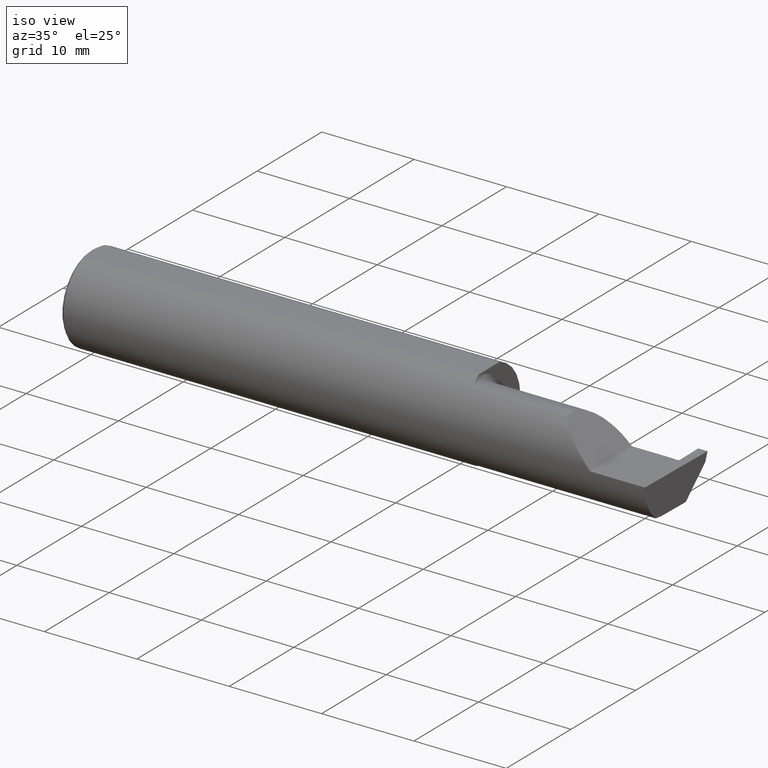
[diagram: clean part render]
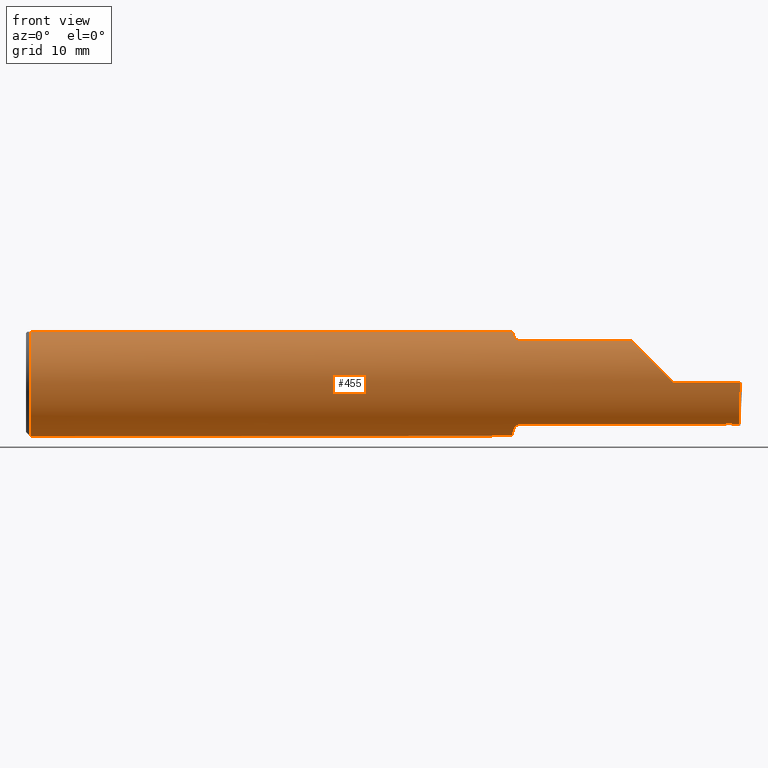
[diagram: tour spotlight — one face highlighted and labeled with its STEP entity id]
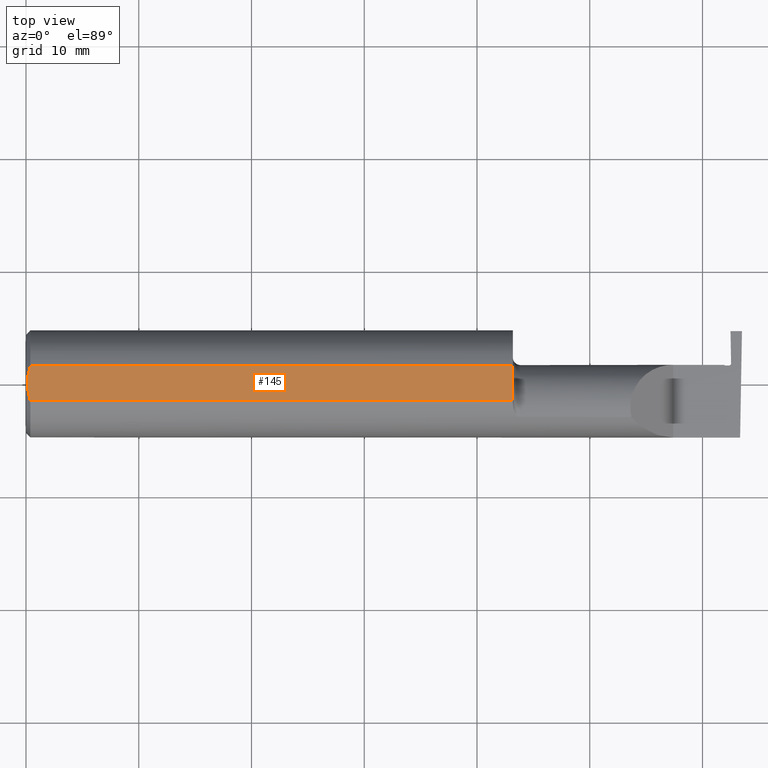
[diagram: tour spotlight — one face highlighted and labeled with its STEP entity id]
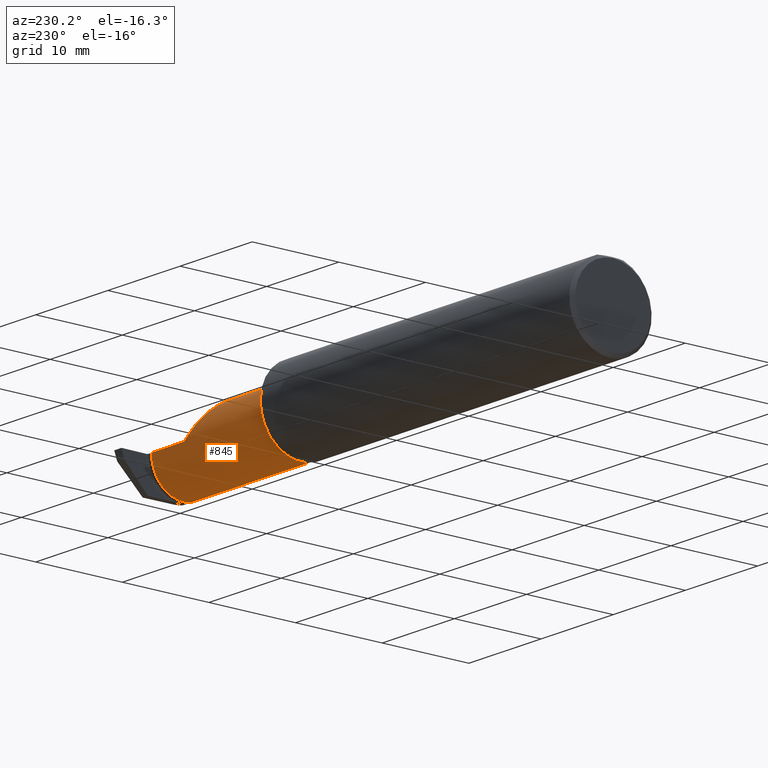
[diagram: tour spotlight — one face highlighted and labeled with its STEP entity id]
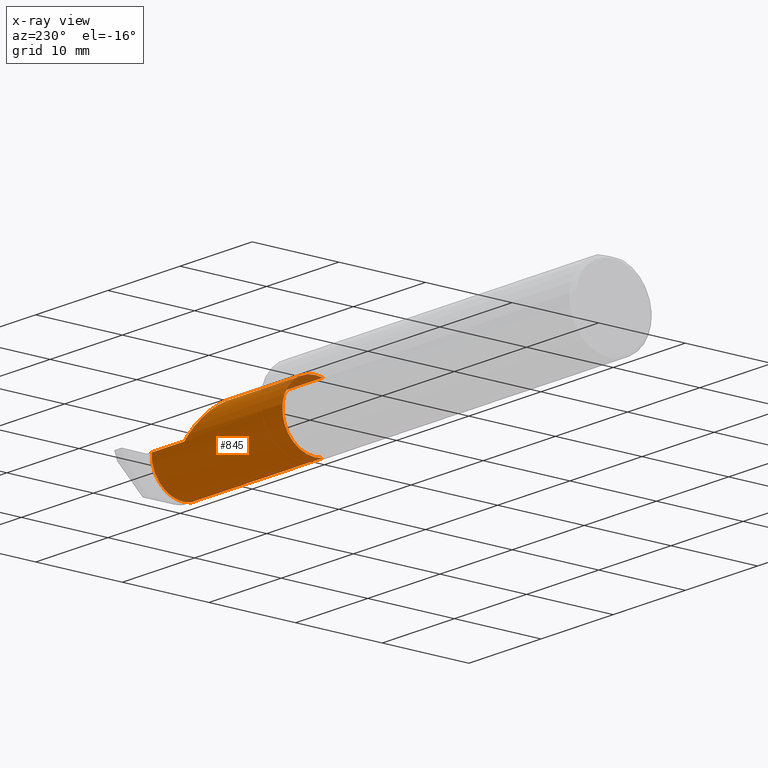
[diagram: x-ray of the same camera — body ghosted, this tour face saturated]
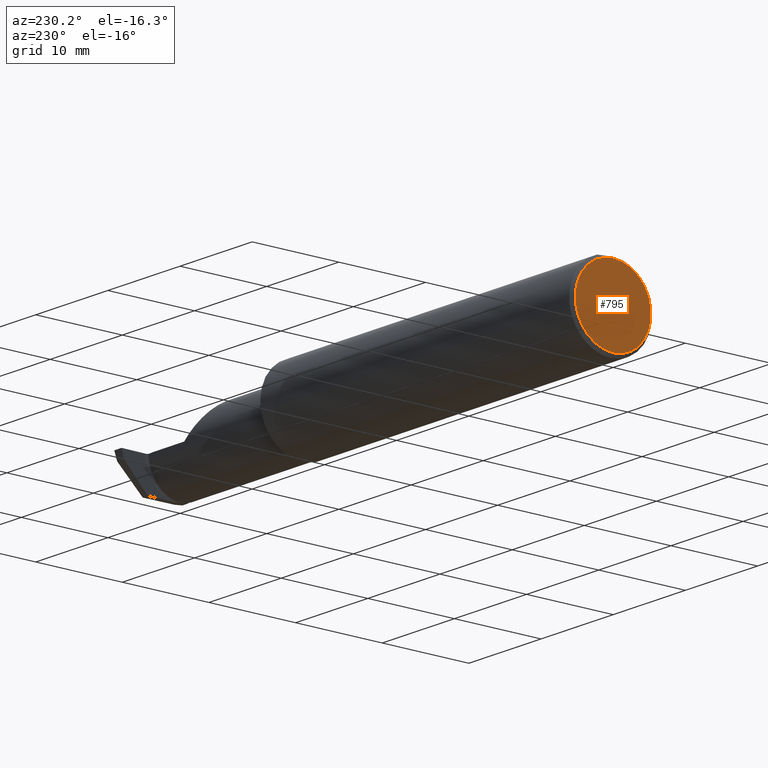
[diagram: tour spotlight — one face highlighted and labeled with its STEP entity id]
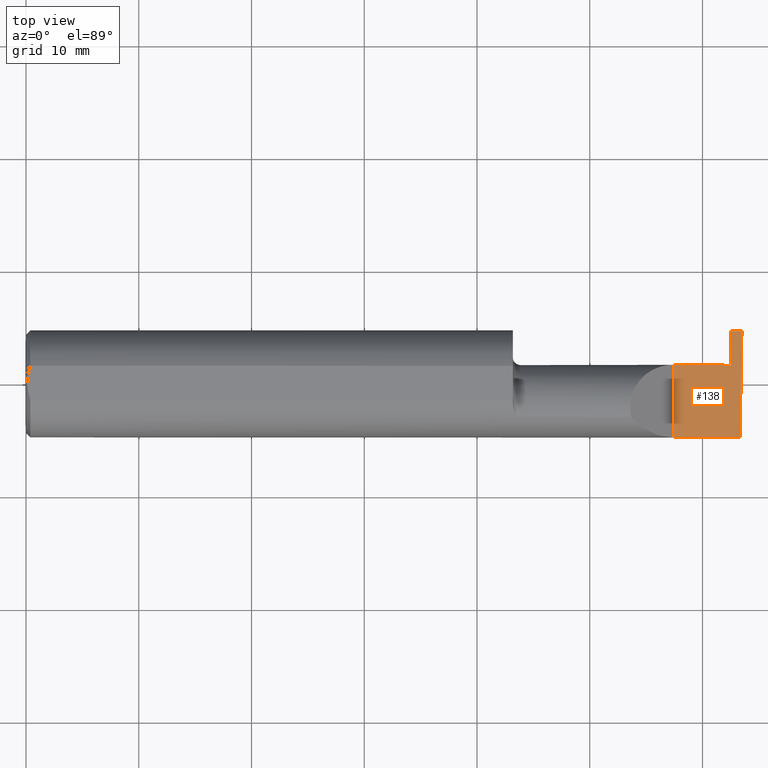
[diagram: tour spotlight — one face highlighted and labeled with its STEP entity id]
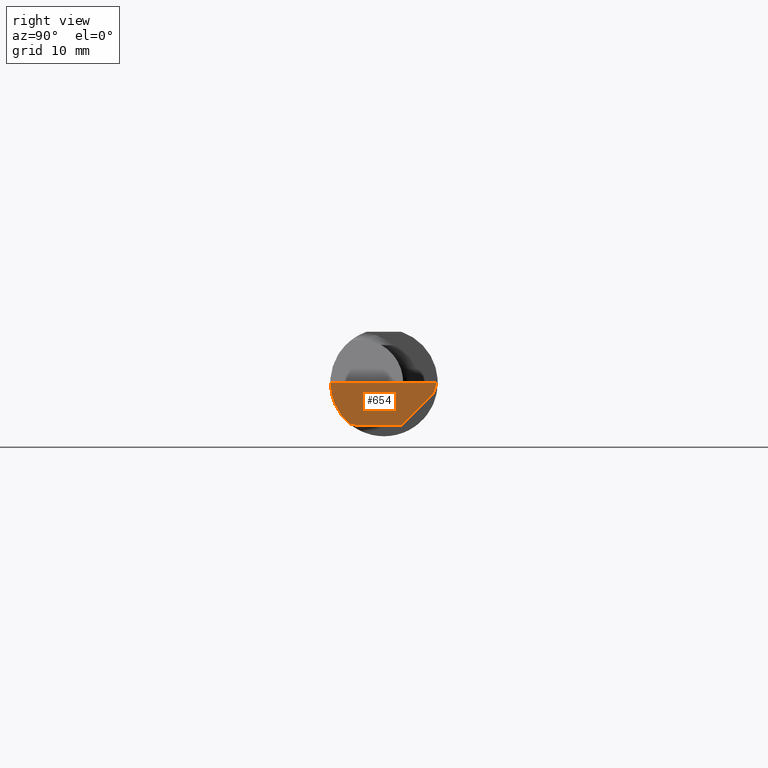
[diagram: tour spotlight — one face highlighted and labeled with its STEP entity id]
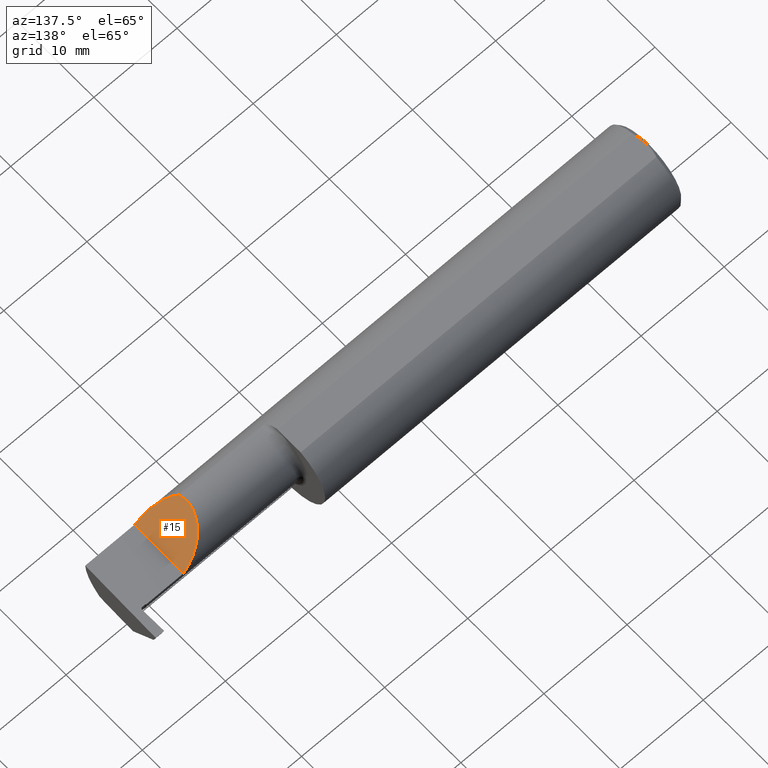
[diagram: tour spotlight — one face highlighted and labeled with its STEP entity id]
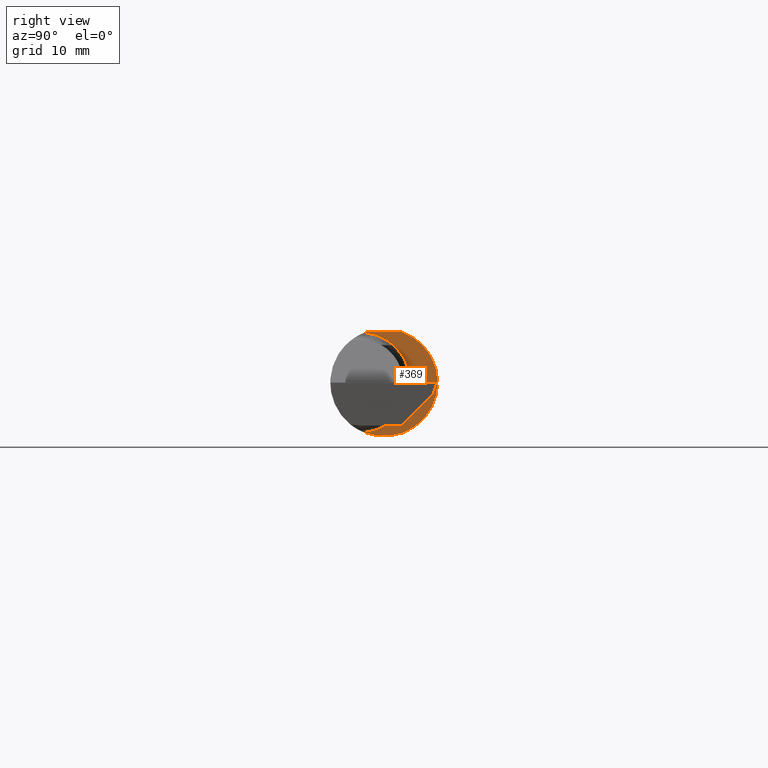
[diagram: tour spotlight — one face highlighted and labeled with its STEP entity id]
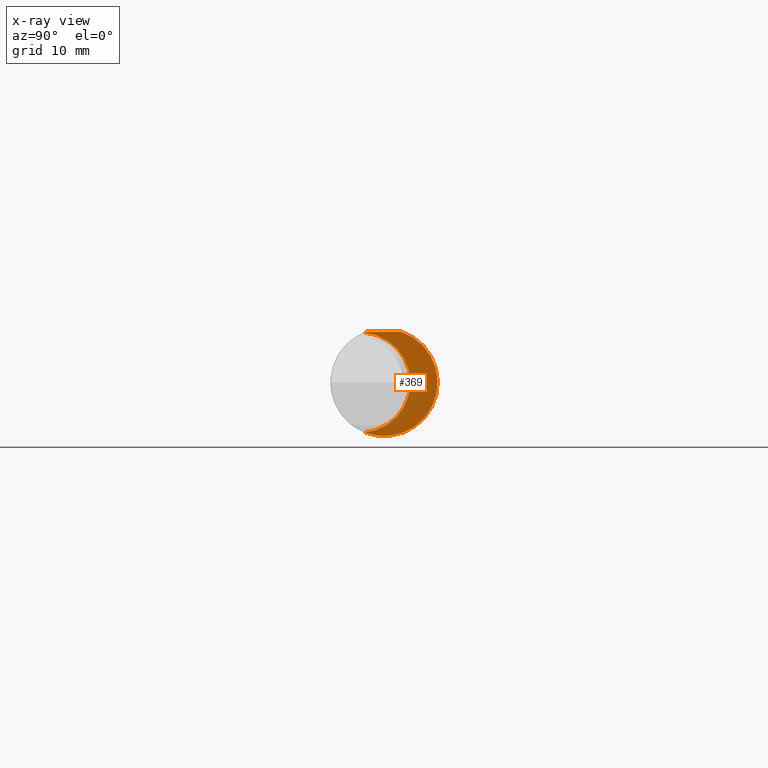
[diagram: x-ray of the same camera — body ghosted, this tour face saturated]
A machine part: a face-by-face anatomy tour. The part has 19 B-rep faces; the first image is the clean iso view, then the 8 largest visible faces are spotlighted one at a time (largest first), each with its STEP entity span.

Face 1 — front view, entity #455. In plain terms, the highlighted cylindrical surface (partial cylindrical patch) has radius 4.7587 mm, axis along (-1, -0, -0).
Definition (entity closure, byte-faithful):
#5 = AXIS2_PLACEMENT_3D ( 'NONE', #96, #538, #38 ) ;
#10 = CARTESIAN_POINT ( 'NONE',  ( 2.465157082534960686, -0.1172600179964006645, -0.1461167706989303094 ) ) ;
#13 = CARTESIAN_POINT ( 'NONE',  ( 0.01499999999999999944, -0.06039039658753697637, 0.1773499999999999799 ) ) ;
#17 = CARTESIAN_POINT ( 'NONE',  ( 2.464039528730166850, -0.1189754524817109305, -0.1447262341929199392 ) ) ;
#20 = CARTESIAN_POINT ( 'NONE',  ( 1.699999999999999956, -0.06039039658753699025, 0.1773499999999999799 ) ) ;
#21 = CARTESIAN_POINT ( 'NONE',  ( 1.699999999999999067, -0.07368234487347193051, -0.1723418180300747837 ) ) ;
#22 = CARTESIAN_POINT ( 'NONE',  ( 0.000000000000000000, 0.06039039658753697637, 0.1773499999999999799 ) ) ;
#23 = EDGE_LOOP ( 'NONE', ( #422, #909, #162, #316, #43, #472, #619, #760, #890, #862, #487, #892, #752, #320, #853, #270, #524 ) ) ;
#25 = CARTESIAN_POINT ( 'NONE',  ( 1.719481469043491417, -0.1163560528186165649, 0.1468472430636323101 ) ) ;
#30 = EDGE_CURVE ( 'NONE', #843, #35, #285, .T. ) ;
#33 = CARTESIAN_POINT ( 'NONE',  ( 1.699999999999999956, -0.06851976604679065053, -0.1743704796142198643 ) ) ;
#35 = VERTEX_POINT ( 'NONE', #742 ) ;
#36 = LINE ( 'NONE', #314, #644 ) ;
#37 = VECTOR ( 'NONE', #421, 39.37007874015748143 ) ;
#38 = DIRECTION ( 'NONE',  ( 0.000000000000000000, 0.000000000000000000, 1.000000000000000000 ) ) ;
#39 = CARTESIAN_POINT ( 'NONE',  ( 2.444567321465558329, -0.1190612593470909836, -0.1446574717509186980 ) ) ;
#43 = ORIENTED_EDGE ( 'NONE', *, *, #924, .F. ) ;
#44 = CARTESIAN_POINT ( 'NONE',  ( 2.493506715846705468, -0.1873499999999999888, 0.000000000000000000 ) ) ;
#51 = EDGE_CURVE ( 'NONE', #748, #825, #800, .T. ) ;
#66 = EDGE_CURVE ( 'NONE', #624, #684, #225, .T. ) ;
#75 = EDGE_CURVE ( 'NONE', #456, #185, #332, .T. ) ;
#85 = EDGE_CURVE ( 'NONE', #593, #456, #471, .T. ) ;
#90 = LINE ( 'NONE', #568, #785 ) ;
#91 = CARTESIAN_POINT ( 'NONE',  ( 2.444107737563633531, -0.1181638109592472036, -0.1453914687463793431 ) ) ;
#94 = CYLINDRICAL_SURFACE ( 'NONE', #116, 0.1873499999999999888 ) ;
#96 = CARTESIAN_POINT ( 'NONE',  ( 0.01499999999999999944, 0.000000000000000000, 0.000000000000000000 ) ) ;
#97 = CARTESIAN_POINT ( 'NONE',  ( 1.700353553376444893, -0.07868116735658678418, 0.1701139256562800572 ) ) ;
#100 = CARTESIAN_POINT ( 'NONE',  ( 1.699999999999999956, -0.06851976604679065053, 0.1743704796142198643 ) ) ;
#101 =( BOUNDED_CURVE ( )  B_SPLINE_CURVE ( 3, ( #866, #284, #780, #205 ),
 .UNSPECIFIED., .F., .F. ) 
 B_SPLINE_CURVE_WITH_KNOTS ( ( 4, 4 ),
 ( 4.712388980384688786, 5.606916381293135743 ),
 .UNSPECIFIED. ) 
 CURVE ( )  GEOMETRIC_REPRESENTATION_ITEM ( )  RATIONAL_B_SPLINE_CURVE ( ( 1.000000000000000000, 0.9344226172588803170, 0.9344226172588803170, 1.000000000000000000 ) ) 
 REPRESENTATION_ITEM ( '' )  );
#106 = CARTESIAN_POINT ( 'NONE',  ( 2.260000000000000231, -0.1873499999999999888, 2.939152317953647352E-17 ) ) ;
#108 = DIRECTION ( 'NONE',  ( 0.000000000000000000, 1.000000000000000000, 0.000000000000000000 ) ) ;
#113 = VERTEX_POINT ( 'NONE', #302 ) ;
#116 = AXIS2_PLACEMENT_3D ( 'NONE', #879, #375, #585 ) ;
#129 = AXIS2_PLACEMENT_3D ( 'NONE', #187, #746, #108 ) ;
#152 = LINE ( 'NONE', #293, #312 ) ;
#155 = CARTESIAN_POINT ( 'NONE',  ( 2.465157082534960686, -0.1172600179964006645, -0.1461167706989303094 ) ) ;
#157 = CARTESIAN_POINT ( 'NONE',  ( 1.702945243422983035, -0.09312071749437424162, 0.1626553472577906279 ) ) ;
#161 = CARTESIAN_POINT ( 'NONE',  ( 2.491063981715931686, -0.1623470442677541759, -0.1099340280425337851 ) ) ;
#162 = ORIENTED_EDGE ( 'NONE', *, *, #391, .T. ) ;
#170 = CARTESIAN_POINT ( 'NONE',  ( 1.724999999999999867, -0.1172600179964007477, 0.1461167706989303094 ) ) ;
#171 = CARTESIAN_POINT ( 'NONE',  ( 0.01499999999999756042, 0.06039039658754215278, 0.1773499999999999799 ) ) ;
#176 = CARTESIAN_POINT ( 'NONE',  ( 1.699999999999999956, -0.06851976604679065053, 0.1743704796142198643 ) ) ;
#184 = DIRECTION ( 'NONE',  ( 1.000000000000000000, 2.261463570914124418E-17, 0.000000000000000000 ) ) ;
#185 = VERTEX_POINT ( 'NONE', #13 ) ;
#187 = CARTESIAN_POINT ( 'NONE',  ( 1.699999999999999956, 0.000000000000000000, 0.000000000000000000 ) ) ;
#205 = CARTESIAN_POINT ( 'NONE',  ( 2.113883229301070532, -0.1172600179964008726, 0.1461167706989301707 ) ) ;
#207 = CARTESIAN_POINT ( 'NONE',  ( 1.724999999999999867, -0.1172600179964006784, -0.1461167706989303094 ) ) ;
#212 = CARTESIAN_POINT ( 'NONE',  ( 2.113883229301070532, -0.1172600179964008726, 0.1461167706989301707 ) ) ;
#225 =( BOUNDED_CURVE ( )  B_SPLINE_CURVE ( 3, ( #295, #161, #315, #372 ),
 .UNSPECIFIED., .F., .F. ) 
 B_SPLINE_CURVE_WITH_KNOTS ( ( 4, 4 ),
 ( 0.08839520912052888091, 0.9829226100289757406 ),
 .UNSPECIFIED. ) 
 CURVE ( )  GEOMETRIC_REPRESENTATION_ITEM ( )  RATIONAL_B_SPLINE_CURVE ( ( 1.000000000000000000, 0.9344226172588803170, 0.9344226172588803170, 1.000000000000000000 ) ) 
 REPRESENTATION_ITEM ( '' )  );
#227 = DIRECTION ( 'NONE',  ( 0.000000000000000000, 1.000000000000000000, 0.000000000000000000 ) ) ;
#232 = CARTESIAN_POINT ( 'NONE',  ( 1.713203859946834218, -0.1120371980050638844, -0.1501764597936558754 ) ) ;
#233 = CARTESIAN_POINT ( 'NONE',  ( 0.01499999999999999944, 0.000000000000000000, -0.1873499999999999888 ) ) ;
#244 = CARTESIAN_POINT ( 'NONE',  ( 1.700358271039144276, -0.07873626113568084339, -0.1700887912276896619 ) ) ;
#248 = DIRECTION ( 'NONE',  ( -1.000000000000000000, -0.000000000000000000, -0.000000000000000000 ) ) ;
#257 = VERTEX_POINT ( 'NONE', #10 ) ;
#263 = EDGE_CURVE ( 'NONE', #825, #313, #90, .T. ) ;
#270 = ORIENTED_EDGE ( 'NONE', *, *, #711, .F. ) ;
#271 = LINE ( 'NONE', #565, #37 ) ;
#283 = CARTESIAN_POINT ( 'NONE',  ( 2.457479760627288456, -0.1207023328152007774, -0.1432863527968775419 ) ) ;
#284 = CARTESIAN_POINT ( 'NONE',  ( 2.202189699843949189, -0.1873500000000000443, 0.05781030015605096578 ) ) ;
#285 = B_SPLINE_CURVE_WITH_KNOTS ( 'NONE', 3,
 ( #176, #459, #97, #804, #157, #373, #815, #439, #666, #25, #598, #170 ),
 .UNSPECIFIED., .F., .F.,
 ( 4, 2, 2, 2, 2, 4 ),
 ( 4.423516731080786679E-05, 0.0004615475116586701624, 0.0008788598560065325393, 0.001296172200354394916, 0.001504828372528326050, 0.001713484544702257185 ),
 .UNSPECIFIED. ) ;
#293 = CARTESIAN_POINT ( 'NONE',  ( 0.000000000000000000, -0.06039039658753697637, 0.1773499999999999799 ) ) ;
#295 = CARTESIAN_POINT ( 'NONE',  ( 2.490903355898019367, -0.1172600179964007477, -0.1461167706989302817 ) ) ;
#302 = CARTESIAN_POINT ( 'NONE',  ( 1.699999999999999956, 0.06039039658754216666, 0.1773499999999999799 ) ) ;
#312 = VECTOR ( 'NONE', #794, 39.37007874015748143 ) ;
#313 = VERTEX_POINT ( 'NONE', #207 ) ;
#314 = CARTESIAN_POINT ( 'NONE',  ( 2.089999999999999858, -0.1172600179964007477, -0.1461167706989302817 ) ) ;
#315 = CARTESIAN_POINT ( 'NONE',  ( 2.491992669264299742, -0.1873499999999999888, -0.05781030015605114619 ) ) ;
#316 = ORIENTED_EDGE ( 'NONE', *, *, #317, .T. ) ;
#317 = EDGE_CURVE ( 'NONE', #839, #357, #101, .T. ) ;
#320 = ORIENTED_EDGE ( 'NONE', *, *, #263, .F. ) ;
#332 = CIRCLE ( 'NONE', #429, 0.1873499999999999888 ) ;
#343 = CIRCLE ( 'NONE', #699, 0.1873499999999999888 ) ;
#357 = VERTEX_POINT ( 'NONE', #212 ) ;
#363 = CARTESIAN_POINT ( 'NONE',  ( 2.454366191791717444, -0.1205154511843879034, -0.1434436126210121010 ) ) ;
#367 = CARTESIAN_POINT ( 'NONE',  ( 2.443647039190226078, -0.1172600179964006784, -0.1461167706989302817 ) ) ;
#372 = CARTESIAN_POINT ( 'NONE',  ( 2.493506715846705468, -0.1873499999999999888, 0.000000000000000000 ) ) ;
#373 = CARTESIAN_POINT ( 'NONE',  ( 1.706287624083520305, -0.1021858045380145269, 0.1571187174372875861 ) ) ;
#374 = CARTESIAN_POINT ( 'NONE',  ( 1.708439486659307338, -0.1064616213911158960, -0.1542305641651499637 ) ) ;
#375 = DIRECTION ( 'NONE',  ( -1.000000000000000000, -0.000000000000000000, -0.000000000000000000 ) ) ;
#391 = EDGE_CURVE ( 'NONE', #684, #839, #271, .T. ) ;
#412 = EDGE_CURVE ( 'NONE', #257, #561, #482, .T. ) ;
#420 = EDGE_CURVE ( 'NONE', #185, #734, #152, .T. ) ;
#421 = DIRECTION ( 'NONE',  ( -1.000000000000000000, -0.000000000000000000, -0.000000000000000000 ) ) ;
#422 = ORIENTED_EDGE ( 'NONE', *, *, #703, .F. ) ;
#424 = CARTESIAN_POINT ( 'NONE',  ( 2.446893715973942118, -0.1200651732626718121, -0.1438207158681458764 ) ) ;
#429 = AXIS2_PLACEMENT_3D ( 'NONE', #754, #248, #733 ) ;
#431 = CARTESIAN_POINT ( 'NONE',  ( 2.450629942783401294, -0.1202905323672299881, -0.1436322050335801792 ) ) ;
#432 = DIRECTION ( 'NONE',  ( -1.000000000000000000, -0.000000000000000000, -0.000000000000000000 ) ) ;
#434 = CARTESIAN_POINT ( 'NONE',  ( 2.445025619349276536, -0.1199521637386445905, -0.1439149085898239755 ) ) ;
#439 = CARTESIAN_POINT ( 'NONE',  ( 1.713163223656403167, -0.1119926267047277740, 0.1502091925606063305 ) ) ;
#441 = CARTESIAN_POINT ( 'NONE',  ( 1.722174967710399462, -0.1172600179964006922, -0.1461167706989303650 ) ) ;
#442 = FACE_OUTER_BOUND ( 'NONE', #23, .T. ) ;
#452 = B_SPLINE_CURVE_WITH_KNOTS ( 'NONE', 3,
 ( #682, #441, #737, #888, #232, #374, #903, #883, #810, #244, #21, #33 ),
 .UNSPECIFIED., .F., .F.,
 ( 4, 2, 2, 2, 2, 4 ),
 ( 1.967976973658592312E-07, 0.0002120314145722276790, 0.0004238660314470894634, 0.0008475352651968016482, 0.001271204498946513833, 0.001694873732696225693 ),
 .UNSPECIFIED. ) ;
#455 = ADVANCED_FACE ( 'NONE', ( #442 ), #94, .T. ) ;
#456 = VERTEX_POINT ( 'NONE', #233 ) ;
#459 = CARTESIAN_POINT ( 'NONE',  ( 1.699999999999999067, -0.07367581953296699349, 0.1723443821957854893 ) ) ;
#471 = CIRCLE ( 'NONE', #5, 0.1873499999999999888 ) ;
#472 = ORIENTED_EDGE ( 'NONE', *, *, #30, .F. ) ;
#482 = B_SPLINE_CURVE_WITH_KNOTS ( 'NONE', 3,
 ( #155, #512, #17, #807, #884, #595 ),
 .UNSPECIFIED., .F., .F.,
 ( 4, 2, 4 ),
 ( 0.0002880341540418109372, 0.0003798726319032785749, 0.0004717111097647461583 ),
 .UNSPECIFIED. ) ;
#487 = ORIENTED_EDGE ( 'NONE', *, *, #493, .F. ) ;
#493 = EDGE_CURVE ( 'NONE', #113, #593, #517, .T. ) ;
#512 = CARTESIAN_POINT ( 'NONE',  ( 2.464654264849292620, -0.1181371930991330227, -0.1454128298176722844 ) ) ;
#515 = DIRECTION ( 'NONE',  ( 1.000000000000000000, 2.261463570914124418E-17, 0.000000000000000000 ) ) ;
#517 = LINE ( 'NONE', #22, #735 ) ;
#524 = ORIENTED_EDGE ( 'NONE', *, *, #412, .F. ) ;
#529 = VECTOR ( 'NONE', #184, 39.37007874015748143 ) ;
#538 = DIRECTION ( 'NONE',  ( -1.000000000000000000, -0.000000000000000000, -0.000000000000000000 ) ) ;
#540 = CARTESIAN_POINT ( 'NONE',  ( 2.490903355898019367, -0.1172600179964007477, -0.1461167706989302817 ) ) ;
#541 = CARTESIAN_POINT ( 'NONE',  ( 2.089999999999999858, -0.1172600179964007477, 0.1461167706989302817 ) ) ;
#561 = VERTEX_POINT ( 'NONE', #627 ) ;
#565 = CARTESIAN_POINT ( 'NONE',  ( 3.749399456654646757E-32, -0.1873499999999999888, 3.061616997868384127E-16 ) ) ;
#568 = CARTESIAN_POINT ( 'NONE',  ( 2.089999999999999858, -0.1172600179964007477, -0.1461167706989302817 ) ) ;
#574 = CARTESIAN_POINT ( 'NONE',  ( 1.699999999999999956, 0.000000000000000000, 0.000000000000000000 ) ) ;
#577 = VERTEX_POINT ( 'NONE', #622 ) ;
#579 = CARTESIAN_POINT ( 'NONE',  ( 2.445025619349276536, -0.1199521637386445905, -0.1439149085898239755 ) ) ;
#585 = DIRECTION ( 'NONE',  ( 0.000000000000000000, 0.000000000000000000, 1.000000000000000000 ) ) ;
#593 = VERTEX_POINT ( 'NONE', #171 ) ;
#594 = CARTESIAN_POINT ( 'NONE',  ( 2.448761823782178215, -0.1201779628839894365, -0.1437264808477274891 ) ) ;
#595 = CARTESIAN_POINT ( 'NONE',  ( 2.459970630616837628, -0.1208515442419402647, -0.1431604929941859006 ) ) ;
#598 = CARTESIAN_POINT ( 'NONE',  ( 1.722161949849308149, -0.1172600179964061462, 0.1461167706989260351 ) ) ;
#603 = EDGE_CURVE ( 'NONE', #313, #577, #452, .T. ) ;
#610 = DIRECTION ( 'NONE',  ( -1.000000000000000000, -2.261463570914124418E-17, -0.000000000000000000 ) ) ;
#614 = LINE ( 'NONE', #541, #529 ) ;
#619 = ORIENTED_EDGE ( 'NONE', *, *, #773, .F. ) ;
#622 = CARTESIAN_POINT ( 'NONE',  ( 1.699999999999999956, -0.06851976604679065053, -0.1743704796142198643 ) ) ;
#624 = VERTEX_POINT ( 'NONE', #540 ) ;
#627 = CARTESIAN_POINT ( 'NONE',  ( 2.459970630616837628, -0.1208515442419402647, -0.1431604929941859006 ) ) ;
#642 = DIRECTION ( 'NONE',  ( -1.000000000000000000, -2.261463570914124418E-17, -0.000000000000000000 ) ) ;
#644 = VECTOR ( 'NONE', #610, 39.37007874015748143 ) ;
#661 = CARTESIAN_POINT ( 'NONE',  ( 2.456234333134034831, -0.1206275801653350077, -0.1433492567244618321 ) ) ;
#666 = CARTESIAN_POINT ( 'NONE',  ( 1.715004157323697154, -0.1137044537483316159, 0.1489098419202428691 ) ) ;
#669 = CARTESIAN_POINT ( 'NONE',  ( 2.443647039190226078, -0.1172600179964006784, -0.1461167706989302817 ) ) ;
#670 = EDGE_CURVE ( 'NONE', #577, #113, #757, .T. ) ;
#681 = CARTESIAN_POINT ( 'NONE',  ( 2.445025619349276536, -0.1199521637386445905, -0.1439149085898239755 ) ) ;
#682 = CARTESIAN_POINT ( 'NONE',  ( 1.724999999999999867, -0.1172600179964006784, -0.1461167706989303094 ) ) ;
#684 = VERTEX_POINT ( 'NONE', #44 ) ;
#699 = AXIS2_PLACEMENT_3D ( 'NONE', #574, #515, #227 ) ;
#703 = EDGE_CURVE ( 'NONE', #624, #257, #36, .T. ) ;
#711 = EDGE_CURVE ( 'NONE', #561, #748, #850, .T. ) ;
#733 = DIRECTION ( 'NONE',  ( 0.000000000000000000, 0.000000000000000000, 1.000000000000000000 ) ) ;
#734 = VERTEX_POINT ( 'NONE', #20 ) ;
#735 = VECTOR ( 'NONE', #432, 39.37007874015748143 ) ;
#737 = CARTESIAN_POINT ( 'NONE',  ( 1.719511795768554396, -0.1163687266324235497, -0.1468371510166789073 ) ) ;
#742 = CARTESIAN_POINT ( 'NONE',  ( 1.724999999999999867, -0.1172600179964007477, 0.1461167706989303094 ) ) ;
#746 = DIRECTION ( 'NONE',  ( 1.000000000000000000, 2.261463570914124418E-17, 0.000000000000000000 ) ) ;
#748 = VERTEX_POINT ( 'NONE', #434 ) ;
#752 = ORIENTED_EDGE ( 'NONE', *, *, #603, .F. ) ;
#754 = CARTESIAN_POINT ( 'NONE',  ( 0.01499999999999999944, 0.000000000000000000, 0.000000000000000000 ) ) ;
#757 = CIRCLE ( 'NONE', #129, 0.1873499999999999888 ) ;
#760 = ORIENTED_EDGE ( 'NONE', *, *, #420, .F. ) ;
#773 = EDGE_CURVE ( 'NONE', #734, #843, #343, .T. ) ;
#780 = CARTESIAN_POINT ( 'NONE',  ( 2.150065971957467070, -0.1623470442677542591, 0.1099340280425335908 ) ) ;
#785 = VECTOR ( 'NONE', #642, 39.37007874015748143 ) ;
#794 = DIRECTION ( 'NONE',  ( 1.000000000000000000, 0.000000000000000000, 0.000000000000000000 ) ) ;
#800 = B_SPLINE_CURVE_WITH_KNOTS ( 'NONE', 3,
 ( #681, #39, #91, #367 ),
 .UNSPECIFIED., .F., .F.,
 ( 4, 4 ),
 ( 0.000000000000000000, 9.502270576536308872E-05 ),
 .UNSPECIFIED. ) ;
#801 = CARTESIAN_POINT ( 'NONE',  ( 2.458725193120777419, -0.1207769875284095407, -0.1432234314053029700 ) ) ;
#804 = CARTESIAN_POINT ( 'NONE',  ( 1.701829077486399555, -0.08839624499054642148, 0.1652742498708037744 ) ) ;
#807 = CARTESIAN_POINT ( 'NONE',  ( 2.462366680899651161, -0.1203677650156720069, -0.1435703392140023904 ) ) ;
#810 = CARTESIAN_POINT ( 'NONE',  ( 1.701843912362377642, -0.08846956905169091334, -0.1652353808078972086 ) ) ;
#815 = CARTESIAN_POINT ( 'NONE',  ( 1.708475602106621194, -0.1064978748893405935, 0.1542035505680383611 ) ) ;
#825 = VERTEX_POINT ( 'NONE', #669 ) ;
#839 = VERTEX_POINT ( 'NONE', #106 ) ;
#843 = VERTEX_POINT ( 'NONE', #100 ) ;
#850 = B_SPLINE_CURVE_WITH_KNOTS ( 'NONE', 3,
 ( #898, #801, #283, #661, #363, #877, #431, #594, #424, #579 ),
 .UNSPECIFIED., .F., .F.,
 ( 4, 3, 3, 4 ),
 ( 0.000000000000000000, 9.519312269160563563E-05, 0.0002379828151262200747, 0.0003807725157339260846 ),
 .UNSPECIFIED. ) ;
#853 = ORIENTED_EDGE ( 'NONE', *, *, #51, .F. ) ;
#862 = ORIENTED_EDGE ( 'NONE', *, *, #85, .F. ) ;
#866 = CARTESIAN_POINT ( 'NONE',  ( 2.260000000000000231, -0.1873499999999999888, 2.939152317953647352E-17 ) ) ;
#877 = CARTESIAN_POINT ( 'NONE',  ( 2.452498061677699681, -0.1204031018440274575, -0.1435379292248289418 ) ) ;
#879 = CARTESIAN_POINT ( 'NONE',  ( 0.000000000000000000, 0.000000000000000000, 0.000000000000000000 ) ) ;
#883 = CARTESIAN_POINT ( 'NONE',  ( 1.702960551809340473, -0.09317341542745746774, -0.1626248379125197208 ) ) ;
#884 = CARTESIAN_POINT ( 'NONE',  ( 2.461215914213870537, -0.1209260915574627421, -0.1430975625165690490 ) ) ;
#888 = CARTESIAN_POINT ( 'NONE',  ( 1.715028532764138802, -0.1137241120808236000, -0.1488947809299403513 ) ) ;
#890 = ORIENTED_EDGE ( 'NONE', *, *, #75, .F. ) ;
#892 = ORIENTED_EDGE ( 'NONE', *, *, #670, .F. ) ;
#898 = CARTESIAN_POINT ( 'NONE',  ( 2.459970630616837628, -0.1208515442419402647, -0.1431604929941859006 ) ) ;
#903 = CARTESIAN_POINT ( 'NONE',  ( 1.706304331342287650, -0.1022198306720691202, -0.1570962426853818317 ) ) ;
#909 = ORIENTED_EDGE ( 'NONE', *, *, #66, .T. ) ;
#924 = EDGE_CURVE ( 'NONE', #35, #357, #614, .T. ) ;

Face 2 — top view, entity #145. In plain terms, the highlighted planar face has unit normal (0, -0, 1).
Definition (entity closure, byte-faithful):
#13 = CARTESIAN_POINT ( 'NONE',  ( 0.01499999999999999944, -0.06039039658753697637, 0.1773499999999999799 ) ) ;
#20 = CARTESIAN_POINT ( 'NONE',  ( 1.699999999999999956, -0.06039039658753699025, 0.1773499999999999799 ) ) ;
#22 = CARTESIAN_POINT ( 'NONE',  ( 0.000000000000000000, 0.06039039658753697637, 0.1773499999999999799 ) ) ;
#54 = CARTESIAN_POINT ( 'NONE',  ( 0.004999999999999835305, 2.941982542510190671E-17, 0.1773499999999999799 ) ) ;
#113 = VERTEX_POINT ( 'NONE', #302 ) ;
#133 = ORIENTED_EDGE ( 'NONE', *, *, #420, .T. ) ;
#136 = ORIENTED_EDGE ( 'NONE', *, *, #493, .T. ) ;
#145 = ADVANCED_FACE ( 'NONE', ( #867 ), #349, .T. ) ;
#152 = LINE ( 'NONE', #293, #312 ) ;
#168 = AXIS2_PLACEMENT_3D ( 'NONE', #290, #864, #721 ) ;
#171 = CARTESIAN_POINT ( 'NONE',  ( 0.01499999999999756042, 0.06039039658754215278, 0.1773499999999999799 ) ) ;
#172 = CARTESIAN_POINT ( 'NONE',  ( 1.699999999999999956, -0.1873500000000000443, 0.1773499999999999799 ) ) ;
#178 = CARTESIAN_POINT ( 'NONE',  ( 0.009346310357820472939, 0.04072930668827419443, 0.1773500000000000354 ) ) ;
#185 = VERTEX_POINT ( 'NONE', #13 ) ;
#241 = VECTOR ( 'NONE', #461, 39.37007874015748143 ) ;
#256 = CARTESIAN_POINT ( 'NONE',  ( 0.01499999999999756042, 0.06039039658754215278, 0.1773499999999999799 ) ) ;
#266 = B_SPLINE_CURVE_WITH_KNOTS ( 'NONE', 3,
 ( #256, #535, #178, #750, #837, #387 ),
 .UNSPECIFIED., .F., .F.,
 ( 4, 2, 4 ),
 ( 0.004207325536406422359, 0.004979129323161655095, 0.005750933109916887831 ),
 .UNSPECIFIED. ) ;
#290 = CARTESIAN_POINT ( 'NONE',  ( 2.500000000000000000, -0.1873500000000000165, 0.1773499999999999799 ) ) ;
#293 = CARTESIAN_POINT ( 'NONE',  ( 0.000000000000000000, -0.06039039658753697637, 0.1773499999999999799 ) ) ;
#302 = CARTESIAN_POINT ( 'NONE',  ( 1.699999999999999956, 0.06039039658754216666, 0.1773499999999999799 ) ) ;
#312 = VECTOR ( 'NONE', #794, 39.37007874015748143 ) ;
#349 = PLANE ( 'NONE',  #168 ) ;
#387 = CARTESIAN_POINT ( 'NONE',  ( 0.004999999999999835305, 2.941982542510190671E-17, 0.1773499999999999799 ) ) ;
#420 = EDGE_CURVE ( 'NONE', #185, #734, #152, .T. ) ;
#432 = DIRECTION ( 'NONE',  ( -1.000000000000000000, -0.000000000000000000, -0.000000000000000000 ) ) ;
#461 = DIRECTION ( 'NONE',  ( -2.261463570914124418E-17, 1.000000000000000000, 0.000000000000000000 ) ) ;
#464 = CARTESIAN_POINT ( 'NONE',  ( 0.004999999999999833571, -0.01026662907944655458, 0.1773499999999999521 ) ) ;
#473 = CARTESIAN_POINT ( 'NONE',  ( 0.009318557230853204490, -0.04061090184993776386, 0.1773499999999999799 ) ) ;
#493 = EDGE_CURVE ( 'NONE', #113, #593, #517, .T. ) ;
#499 = VERTEX_POINT ( 'NONE', #652 ) ;
#517 = LINE ( 'NONE', #22, #735 ) ;
#519 = EDGE_LOOP ( 'NONE', ( #133, #612, #136, #553, #905 ) ) ;
#535 = CARTESIAN_POINT ( 'NONE',  ( 0.01185291896084217714, 0.05062716160312498437, 0.1773499999999999521 ) ) ;
#552 = B_SPLINE_CURVE_WITH_KNOTS ( 'NONE', 3,
 ( #54, #464, #765, #473, #833, #753 ),
 .UNSPECIFIED., .F., .F.,
 ( 4, 2, 4 ),
 ( 0.005750933109916887831, 0.006521788775031543001, 0.007292644440146199038 ),
 .UNSPECIFIED. ) ;
#553 = ORIENTED_EDGE ( 'NONE', *, *, #917, .T. ) ;
#593 = VERTEX_POINT ( 'NONE', #171 ) ;
#612 = ORIENTED_EDGE ( 'NONE', *, *, #824, .T. ) ;
#649 = EDGE_CURVE ( 'NONE', #499, #185, #552, .T. ) ;
#652 = CARTESIAN_POINT ( 'NONE',  ( 0.004999999999999835305, 2.941982542510190671E-17, 0.1773499999999999799 ) ) ;
#721 = DIRECTION ( 'NONE',  ( 1.000000000000000000, 0.000000000000000000, -0.000000000000000000 ) ) ;
#734 = VERTEX_POINT ( 'NONE', #20 ) ;
#735 = VECTOR ( 'NONE', #432, 39.37007874015748143 ) ;
#750 = CARTESIAN_POINT ( 'NONE',  ( 0.005916828623699125177, 0.02060071390057613763, 0.1773499999999999799 ) ) ;
#753 = CARTESIAN_POINT ( 'NONE',  ( 0.01499999999999999944, -0.06039039658753697637, 0.1773499999999999799 ) ) ;
#765 = CARTESIAN_POINT ( 'NONE',  ( 0.005896899252109314912, -0.02043863390046160924, 0.1773500000000000354 ) ) ;
#794 = DIRECTION ( 'NONE',  ( 1.000000000000000000, 0.000000000000000000, 0.000000000000000000 ) ) ;
#818 = LINE ( 'NONE', #172, #241 ) ;
#824 = EDGE_CURVE ( 'NONE', #734, #113, #818, .T. ) ;
#833 = CARTESIAN_POINT ( 'NONE',  ( 0.01186375298701897348, -0.05066077215909271098, 0.1773499999999999799 ) ) ;
#837 = CARTESIAN_POINT ( 'NONE',  ( 0.004999999999999839642, 0.01027925662263861305, 0.1773499999999999799 ) ) ;
#864 = DIRECTION ( 'NONE',  ( 0.000000000000000000, -0.000000000000000000, 1.000000000000000000 ) ) ;
#867 = FACE_OUTER_BOUND ( 'NONE', #519, .T. ) ;
#905 = ORIENTED_EDGE ( 'NONE', *, *, #649, .T. ) ;
#917 = EDGE_CURVE ( 'NONE', #593, #499, #266, .T. ) ;

Face 3 — auxiliary view, entity #845. An x-ray twin of the same camera follows (body ghosted, this face saturated) — the face is partly hidden behind the body. In plain terms, the highlighted cylindrical surface (partial cylindrical patch) has radius 3.81 mm, axis along (-1, -0, -0).
Definition (entity closure, byte-faithful):
#35 = VERTEX_POINT ( 'NONE', #742 ) ;
#50 = DIRECTION ( 'NONE',  ( 0.000000000000000000, -1.000000000000000000, 0.000000000000000000 ) ) ;
#59 = CARTESIAN_POINT ( 'NONE',  ( 2.260000000000000231, 0.06665000000000002867, 2.939152317953647352E-17 ) ) ;
#90 = LINE ( 'NONE', #568, #785 ) ;
#112 = CARTESIAN_POINT ( 'NONE',  ( 1.724999999999999867, -0.08334999999999996578, 0.000000000000000000 ) ) ;
#121 = CARTESIAN_POINT ( 'NONE',  ( 2.443733570787250287, -0.1062136811403290720, -0.1486803469386182297 ) ) ;
#131 = CARTESIAN_POINT ( 'NONE',  ( 2.443382066057399715, -0.02860029826593078403, -0.1401013635948213376 ) ) ;
#146 = CARTESIAN_POINT ( 'NONE',  ( 2.437999999999999279, 0.06665000000000012581, 8.765184870477052559E-18 ) ) ;
#183 = CARTESIAN_POINT ( 'NONE',  ( 2.438434870138894706, 0.06665000001257273543, -0.01133157783873995315 ) ) ;
#184 = DIRECTION ( 'NONE',  ( 1.000000000000000000, 2.261463570914124418E-17, 0.000000000000000000 ) ) ;
#190 = DIRECTION ( 'NONE',  ( 1.000000000000000000, 2.261463570914124418E-17, 0.000000000000000000 ) ) ;
#193 = CARTESIAN_POINT ( 'NONE',  ( 2.443815344807843903, -0.07244319703336320193, -0.1500290047513198888 ) ) ;
#207 = CARTESIAN_POINT ( 'NONE',  ( 1.724999999999999867, -0.1172600179964006784, -0.1461167706989303094 ) ) ;
#212 = CARTESIAN_POINT ( 'NONE',  ( 2.113883229301070532, -0.1172600179964008726, 0.1461167706989301707 ) ) ;
#237 = ORIENTED_EDGE ( 'NONE', *, *, #263, .T. ) ;
#245 = CARTESIAN_POINT ( 'NONE',  ( 1.699999999999999956, -0.08334999999999996578, 0.000000000000000000 ) ) ;
#259 = CARTESIAN_POINT ( 'NONE',  ( 2.443789578363331660, -0.09504051956460037032, -0.1499699715607571149 ) ) ;
#263 = EDGE_CURVE ( 'NONE', #825, #313, #90, .T. ) ;
#264 = CARTESIAN_POINT ( 'NONE',  ( 2.441904550514381711, 0.02678675195050726418, -0.1024442611876130310 ) ) ;
#279 = AXIS2_PLACEMENT_3D ( 'NONE', #245, #608, #306 ) ;
#306 = DIRECTION ( 'NONE',  ( 0.000000000000000000, -1.000000000000000000, 0.000000000000000000 ) ) ;
#313 = VERTEX_POINT ( 'NONE', #207 ) ;
#322 = CARTESIAN_POINT ( 'NONE',  ( 2.441258951838722879, 0.04075339827323681136, -0.08498986596952491646 ) ) ;
#338 = CARTESIAN_POINT ( 'NONE',  ( 2.442238177621225415, 0.01877818259013969149, -0.1104401941422841482 ) ) ;
#357 = VERTEX_POINT ( 'NONE', #212 ) ;
#376 = FACE_OUTER_BOUND ( 'NONE', #671, .T. ) ;
#379 = VERTEX_POINT ( 'NONE', #146 ) ;
#392 = CARTESIAN_POINT ( 'NONE',  ( 2.443647039190226078, -0.1172600179964006784, -0.1461167706989302817 ) ) ;
#395 = ORIENTED_EDGE ( 'NONE', *, *, #863, .F. ) ;
#400 = ORIENTED_EDGE ( 'NONE', *, *, #533, .T. ) ;
#451 = ORIENTED_EDGE ( 'NONE', *, *, #855, .T. ) ;
#454 = CYLINDRICAL_SURFACE ( 'NONE', #279, 0.1499999999999999667 ) ;
#468 = CARTESIAN_POINT ( 'NONE',  ( 1.699999999999999956, 0.06665000000000001479, 9.797174393178832313E-17 ) ) ;
#474 = CARTESIAN_POINT ( 'NONE',  ( 2.442833554690725606, 0.001115449006605484517, -0.1244700368982947641 ) ) ;
#479 = LINE ( 'NONE', #468, #813 ) ;
#525 = EDGE_CURVE ( 'NONE', #530, #379, #479, .T. ) ;
#529 = VECTOR ( 'NONE', #184, 39.37007874015748143 ) ;
#530 = VERTEX_POINT ( 'NONE', #59 ) ;
#533 = EDGE_CURVE ( 'NONE', #379, #825, #848, .T. ) ;
#541 = CARTESIAN_POINT ( 'NONE',  ( 2.089999999999999858, -0.1172600179964007477, 0.1461167706989302817 ) ) ;
#544 = CARTESIAN_POINT ( 'NONE',  ( 2.443526505352285216, -0.03939163170913394241, -0.1438495478264734950 ) ) ;
#550 = CARTESIAN_POINT ( 'NONE',  ( 2.439687465777439890, 0.06031148358191426584, -0.04459181647100833590 ) ) ;
#568 = CARTESIAN_POINT ( 'NONE',  ( 2.089999999999999858, -0.1172600179964007477, -0.1461167706989302817 ) ) ;
#581 =( BOUNDED_CURVE ( )  B_SPLINE_CURVE ( 3, ( #823, #904, #601, #688 ),
 .UNSPECIFIED., .F., .F. ) 
 B_SPLINE_CURVE_WITH_KNOTS ( ( 4, 4 ),
 ( 6.055147272130140479, 7.853981633974482790 ),
 .UNSPECIFIED. ) 
 CURVE ( )  GEOMETRIC_REPRESENTATION_ITEM ( )  RATIONAL_B_SPLINE_CURVE ( ( 1.000000000000000000, 0.7480442670255262883, 0.7480442670255262883, 1.000000000000000000 ) ) 
 REPRESENTATION_ITEM ( '' )  );
#601 = CARTESIAN_POINT ( 'NONE',  ( 2.155331797197864940, 0.06665000000000001479, 0.1046682028021362204 ) ) ;
#608 = DIRECTION ( 'NONE',  ( -1.000000000000000000, -2.261463570914124418E-17, -0.000000000000000000 ) ) ;
#614 = LINE ( 'NONE', #541, #529 ) ;
#642 = DIRECTION ( 'NONE',  ( -1.000000000000000000, -2.261463570914124418E-17, -0.000000000000000000 ) ) ;
#669 = CARTESIAN_POINT ( 'NONE',  ( 2.443647039190226078, -0.1172600179964006784, -0.1461167706989302817 ) ) ;
#671 = EDGE_LOOP ( 'NONE', ( #918, #400, #237, #395, #923, #451 ) ) ;
#688 = CARTESIAN_POINT ( 'NONE',  ( 2.260000000000000231, 0.06665000000000002867, 2.939152317953647352E-17 ) ) ;
#742 = CARTESIAN_POINT ( 'NONE',  ( 1.724999999999999867, -0.1172600179964007477, 0.1461167706989303094 ) ) ;
#758 = CARTESIAN_POINT ( 'NONE',  ( 2.437999999999999279, 0.06665000000000012581, 8.765184870477052559E-18 ) ) ;
#762 = CARTESIAN_POINT ( 'NONE',  ( 2.440931591934140332, 0.04684530795330053843, -0.07533264334203756962 ) ) ;
#768 = CARTESIAN_POINT ( 'NONE',  ( 2.443759016412512253, -0.06120540515717875357, -0.1487771738941279787 ) ) ;
#771 = CARTESIAN_POINT ( 'NONE',  ( 2.443046201255688388, -0.008364411415345522280, -0.1303958719657597465 ) ) ;
#785 = VECTOR ( 'NONE', #642, 39.37007874015748143 ) ;
#813 = VECTOR ( 'NONE', #190, 39.37007874015748143 ) ;
#816 = CIRCLE ( 'NONE', #893, 0.1499999999999999944 ) ;
#823 = CARTESIAN_POINT ( 'NONE',  ( 2.113883229301070532, -0.1172600179964008726, 0.1461167706989301707 ) ) ;
#825 = VERTEX_POINT ( 'NONE', #669 ) ;
#845 = ADVANCED_FACE ( 'NONE', ( #376 ), #454, .T. ) ;
#848 = B_SPLINE_CURVE_WITH_KNOTS ( 'NONE', 3,
 ( #758, #183, #912, #550, #922, #762, #322, #264, #338, #474, #771, #131, #544, #768, #193, #259, #121, #392 ),
 .UNSPECIFIED., .F., .F.,
 ( 4, 2, 2, 2, 2, 2, 2, 2, 4 ),
 ( 4.211144629129067525E-12, 0.0008601682351884722350, 0.001720336466165799799, 0.002580504697143127905, 0.003440672928120456445, 0.004300841159097783251, 0.005161009390075111357, 0.006021177621052438596, 0.006881345852029768437 ),
 .UNSPECIFIED. ) ;
#855 = EDGE_CURVE ( 'NONE', #357, #530, #581, .T. ) ;
#863 = EDGE_CURVE ( 'NONE', #35, #313, #816, .T. ) ;
#893 = AXIS2_PLACEMENT_3D ( 'NONE', #112, #896, #50 ) ;
#896 = DIRECTION ( 'NONE',  ( -1.000000000000000000, -2.261463570914124418E-17, -0.000000000000000000 ) ) ;
#904 = CARTESIAN_POINT ( 'NONE',  ( 2.090221225029928576, -0.01530148607434178402, 0.1697787749700727655 ) ) ;
#912 = CARTESIAN_POINT ( 'NONE',  ( 2.438837466406861942, 0.06536221517195602015, -0.02262142833223782304 ) ) ;
#918 = ORIENTED_EDGE ( 'NONE', *, *, #525, .T. ) ;
#922 = CARTESIAN_POINT ( 'NONE',  ( 2.440128188932078057, 0.05660152407038088196, -0.05513071989672360673 ) ) ;
#923 = ORIENTED_EDGE ( 'NONE', *, *, #924, .T. ) ;
#924 = EDGE_CURVE ( 'NONE', #35, #357, #614, .T. ) ;

Face 4 — auxiliary view, entity #795. In plain terms, the highlighted planar face has unit normal (1, 0, 0).
Definition (entity closure, byte-faithful):
#61 = ORIENTED_EDGE ( 'NONE', *, *, #720, .T. ) ;
#81 = AXIS2_PLACEMENT_3D ( 'NONE', #865, #725, #882 ) ;
#102 = ORIENTED_EDGE ( 'NONE', *, *, #559, .T. ) ;
#104 = EDGE_LOOP ( 'NONE', ( #102, #61 ) ) ;
#260 = CARTESIAN_POINT ( 'NONE',  ( 0.000000000000000000, 0.000000000000000000, 0.000000000000000000 ) ) ;
#319 = DIRECTION ( 'NONE',  ( 1.000000000000000000, 0.000000000000000000, 0.000000000000000000 ) ) ;
#328 = DIRECTION ( 'NONE',  ( -1.000000000000000000, -0.000000000000000000, -0.000000000000000000 ) ) ;
#388 = CIRCLE ( 'NONE', #81, 0.1723499999999999754 ) ;
#398 = CARTESIAN_POINT ( 'NONE',  ( 0.000000000000000000, 2.202527268266524596E-17, 0.1723499999999999754 ) ) ;
#526 = AXIS2_PLACEMENT_3D ( 'NONE', #841, #328, #920 ) ;
#542 = VERTEX_POINT ( 'NONE', #398 ) ;
#559 = EDGE_CURVE ( 'NONE', #821, #542, #797, .T. ) ;
#720 = EDGE_CURVE ( 'NONE', #542, #821, #388, .T. ) ;
#725 = DIRECTION ( 'NONE',  ( -1.000000000000000000, -0.000000000000000000, -0.000000000000000000 ) ) ;
#739 = CARTESIAN_POINT ( 'NONE',  ( 0.000000000000000000, 0.000000000000000000, -0.1723499999999999754 ) ) ;
#744 = FACE_OUTER_BOUND ( 'NONE', #104, .T. ) ;
#759 = PLANE ( 'NONE',  #776 ) ;
#776 = AXIS2_PLACEMENT_3D ( 'NONE', #260, #319, #908 ) ;
#795 = ADVANCED_FACE ( 'NONE', ( #744 ), #759, .F. ) ;
#797 = CIRCLE ( 'NONE', #526, 0.1723499999999999754 ) ;
#821 = VERTEX_POINT ( 'NONE', #739 ) ;
#841 = CARTESIAN_POINT ( 'NONE',  ( 0.000000000000000000, 0.000000000000000000, 0.000000000000000000 ) ) ;
#865 = CARTESIAN_POINT ( 'NONE',  ( 0.000000000000000000, 0.000000000000000000, 0.000000000000000000 ) ) ;
#882 = DIRECTION ( 'NONE',  ( 0.000000000000000000, 0.000000000000000000, 1.000000000000000000 ) ) ;
#908 = DIRECTION ( 'NONE',  ( 0.000000000000000000, 0.000000000000000000, -1.000000000000000000 ) ) ;
#920 = DIRECTION ( 'NONE',  ( 0.000000000000000000, 0.000000000000000000, 1.000000000000000000 ) ) ;

Face 5 — top view, entity #138. In plain terms, the highlighted planar face has unit normal (-0, 0, -1).
Definition (entity closure, byte-faithful):
#19 = CARTESIAN_POINT ( 'NONE',  ( 2.500000000000000000, 0.1846500000000000363, 0.000000000000000000 ) ) ;
#29 = EDGE_LOOP ( 'NONE', ( #690, #915, #213, #173, #596, #330, #324, #740, #769 ) ) ;
#37 = VECTOR ( 'NONE', #421, 39.37007874015748143 ) ;
#44 = CARTESIAN_POINT ( 'NONE',  ( 2.493506715846705468, -0.1873499999999999888, 0.000000000000000000 ) ) ;
#53 = VERTEX_POINT ( 'NONE', #19 ) ;
#55 = AXIS2_PLACEMENT_3D ( 'NONE', #428, #858, #724 ) ;
#59 = CARTESIAN_POINT ( 'NONE',  ( 2.260000000000000231, 0.06665000000000002867, 2.939152317953647352E-17 ) ) ;
#105 = CARTESIAN_POINT ( 'NONE',  ( 2.500000000000000000, 0.1846500000000000363, 0.000000000000000000 ) ) ;
#106 = CARTESIAN_POINT ( 'NONE',  ( 2.260000000000000231, -0.1873499999999999888, 2.939152317953647352E-17 ) ) ;
#138 = ADVANCED_FACE ( 'NONE', ( #728 ), #210, .F. ) ;
#146 = CARTESIAN_POINT ( 'NONE',  ( 2.437999999999999279, 0.06665000000000012581, 8.765184870477052559E-18 ) ) ;
#165 = CARTESIAN_POINT ( 'NONE',  ( 2.437999999999999279, 0.06665000000000012581, 8.765184870477052559E-18 ) ) ;
#167 = VERTEX_POINT ( 'NONE', #358 ) ;
#173 = ORIENTED_EDGE ( 'NONE', *, *, #686, .T. ) ;
#190 = DIRECTION ( 'NONE',  ( 1.000000000000000000, 2.261463570914124418E-17, 0.000000000000000000 ) ) ;
#197 =( BOUNDED_CURVE ( )  B_SPLINE_CURVE ( 3, ( #907, #255, #836, #692 ),
 .UNSPECIFIED., .F., .T. ) 
 B_SPLINE_CURVE_WITH_KNOTS ( ( 4, 4 ),
 ( 8.673617379884037398E-19, 0.0002808519284762491029 ),
 .UNSPECIFIED. ) 
 CURVE ( )  GEOMETRIC_REPRESENTATION_ITEM ( )  RATIONAL_B_SPLINE_CURVE ( ( 1.000000000000000000, 0.8006061761999018200, 0.8006061761999018200, 1.000000000000000000 ) ) 
 REPRESENTATION_ITEM ( '' )  );
#210 = PLANE ( 'NONE',  #55 ) ;
#213 = ORIENTED_EDGE ( 'NONE', *, *, #356, .F. ) ;
#214 = CARTESIAN_POINT ( 'NONE',  ( 2.454971356043562647, 0.06464999999999883340, -4.269732225470078558E-11 ) ) ;
#218 = CARTESIAN_POINT ( 'NONE',  ( 2.439999999988526902, 0.06464999999898689287, 1.642770360019671343E-10 ) ) ;
#250 = DIRECTION ( 'NONE',  ( -0.01745240643727703073, -0.9998476951563912696, 0.000000000000000000 ) ) ;
#252 = EDGE_CURVE ( 'NONE', #167, #698, #798, .T. ) ;
#253 = VERTEX_POINT ( 'NONE', #876 ) ;
#255 = CARTESIAN_POINT ( 'NONE',  ( 2.462042847893961550, 0.06761532263369836315, -4.817540128674956828E-11 ) ) ;
#271 = LINE ( 'NONE', #565, #37 ) ;
#321 = CARTESIAN_POINT ( 'NONE',  ( 2.461970289910105691, 0.07177216684492272736, -4.912318472672728541E-11 ) ) ;
#323 = CARTESIAN_POINT ( 'NONE',  ( 2.459999999986549835, 0.1846500000000000363, -3.367778697655196529E-19 ) ) ;
#324 = ORIENTED_EDGE ( 'NONE', *, *, #831, .T. ) ;
#330 = ORIENTED_EDGE ( 'NONE', *, *, #252, .T. ) ;
#335 = B_SPLINE_CURVE_WITH_KNOTS ( 'NONE', 1,
 ( #383, #321 ),
 .UNSPECIFIED., .F., .F.,
 ( 2, 2 ),
 ( 6.219974576484723728E-15, 0.002867533701424600928 ),
 .UNSPECIFIED. ) ;
#342 = DIRECTION ( 'NONE',  ( -0.000000000000000000, 1.000000000000000000, -0.000000000000000000 ) ) ;
#344 = EDGE_CURVE ( 'NONE', #839, #530, #567, .T. ) ;
#347 = DIRECTION ( 'NONE',  ( 1.000000000000000000, -0.000000000000000000, -0.000000000000000000 ) ) ;
#348 = CARTESIAN_POINT ( 'NONE',  ( 2.399999999999999911, 0.1846500000000000363, -3.367778697655196529E-19 ) ) ;
#356 = EDGE_CURVE ( 'NONE', #809, #53, #640, .T. ) ;
#358 = CARTESIAN_POINT ( 'NONE',  ( 2.454971356043562647, 0.06464999999999883340, -4.269732225470078558E-11 ) ) ;
#370 = LINE ( 'NONE', #105, #710 ) ;
#379 = VERTEX_POINT ( 'NONE', #146 ) ;
#383 = CARTESIAN_POINT ( 'NONE',  ( 2.459999999986549835, 0.1846500000000000363, -3.367778697655196529E-19 ) ) ;
#391 = EDGE_CURVE ( 'NONE', #684, #839, #271, .T. ) ;
#421 = DIRECTION ( 'NONE',  ( -1.000000000000000000, -0.000000000000000000, -0.000000000000000000 ) ) ;
#428 = CARTESIAN_POINT ( 'NONE',  ( 2.500000000000000000, -0.2000000000000000111, 0.000000000000000000 ) ) ;
#468 = CARTESIAN_POINT ( 'NONE',  ( 1.699999999999999956, 0.06665000000000001479, 9.797174393178832313E-17 ) ) ;
#475 = CARTESIAN_POINT ( 'NONE',  ( 2.439999999988526902, 0.06464999999898689287, 1.642770360019671343E-10 ) ) ;
#479 = LINE ( 'NONE', #468, #813 ) ;
#525 = EDGE_CURVE ( 'NONE', #530, #379, #479, .T. ) ;
#530 = VERTEX_POINT ( 'NONE', #59 ) ;
#565 = CARTESIAN_POINT ( 'NONE',  ( 3.749399456654646757E-32, -0.1873499999999999888, 3.061616997868384127E-16 ) ) ;
#567 = LINE ( 'NONE', #569, #588 ) ;
#569 = CARTESIAN_POINT ( 'NONE',  ( 2.260000000000000231, -0.2000000000000000111, 2.939152317953647352E-17 ) ) ;
#570 = EDGE_CURVE ( 'NONE', #253, #167, #197, .T. ) ;
#588 = VECTOR ( 'NONE', #342, 39.37007874015748143 ) ;
#596 = ORIENTED_EDGE ( 'NONE', *, *, #570, .T. ) ;
#633 = EDGE_CURVE ( 'NONE', #53, #684, #370, .T. ) ;
#640 = LINE ( 'NONE', #348, #852 ) ;
#679 = CARTESIAN_POINT ( 'NONE',  ( 2.439999999988526902, 0.06464999999898689287, 1.642770360019671343E-10 ) ) ;
#684 = VERTEX_POINT ( 'NONE', #44 ) ;
#686 = EDGE_CURVE ( 'NONE', #809, #253, #335, .T. ) ;
#690 = ORIENTED_EDGE ( 'NONE', *, *, #391, .F. ) ;
#692 = CARTESIAN_POINT ( 'NONE',  ( 2.454971356043562647, 0.06464999999999883340, -4.269732225470078558E-11 ) ) ;
#698 = VERTEX_POINT ( 'NONE', #679 ) ;
#710 = VECTOR ( 'NONE', #250, 39.37007874015748143 ) ;
#724 = DIRECTION ( 'NONE',  ( -1.000000000000000000, 0.000000000000000000, 1.224646799147353700E-16 ) ) ;
#728 = FACE_OUTER_BOUND ( 'NONE', #29, .T. ) ;
#740 = ORIENTED_EDGE ( 'NONE', *, *, #525, .F. ) ;
#766 = B_SPLINE_CURVE_WITH_KNOTS ( 'NONE', 1,
 ( #475, #165 ),
 .UNSPECIFIED., .F., .F.,
 ( 2, 2 ),
 ( 0.000000000000000000, 7.184204878069823852E-05 ),
 .UNSPECIFIED. ) ;
#769 = ORIENTED_EDGE ( 'NONE', *, *, #344, .F. ) ;
#798 = B_SPLINE_CURVE_WITH_KNOTS ( 'NONE', 1,
 ( #214, #218 ),
 .UNSPECIFIED., .F., .F.,
 ( 2, 2 ),
 ( 0.000000000000000000, 0.0003802724437979160266 ),
 .UNSPECIFIED. ) ;
#809 = VERTEX_POINT ( 'NONE', #323 ) ;
#813 = VECTOR ( 'NONE', #190, 39.37007874015748143 ) ;
#831 = EDGE_CURVE ( 'NONE', #698, #379, #766, .T. ) ;
#836 = CARTESIAN_POINT ( 'NONE',  ( 2.459128833457472574, 0.06464999999995867108, -4.734315073200826541E-11 ) ) ;
#839 = VERTEX_POINT ( 'NONE', #106 ) ;
#852 = VECTOR ( 'NONE', #347, 39.37007874015748143 ) ;
#858 = DIRECTION ( 'NONE',  ( -1.224646799147353700E-16, 0.000000000000000000, -1.000000000000000000 ) ) ;
#876 = CARTESIAN_POINT ( 'NONE',  ( 2.461970289910105691, 0.07177216684492272736, -4.912318472672728541E-11 ) ) ;
#907 = CARTESIAN_POINT ( 'NONE',  ( 2.461970289910105691, 0.07177216684492272736, -4.912318472672728541E-11 ) ) ;
#915 = ORIENTED_EDGE ( 'NONE', *, *, #633, .F. ) ;

Face 6 — right view, entity #654. In plain terms, the highlighted planar face has unit normal (-0.9995, 0.0174, 0.0262).
Definition (entity closure, byte-faithful):
#12 = LINE ( 'NONE', #289, #697 ) ;
#19 = CARTESIAN_POINT ( 'NONE',  ( 2.500000000000000000, 0.1846500000000000363, 0.000000000000000000 ) ) ;
#44 = CARTESIAN_POINT ( 'NONE',  ( 2.493506715846705468, -0.1873499999999999888, 0.000000000000000000 ) ) ;
#53 = VERTEX_POINT ( 'NONE', #19 ) ;
#66 = EDGE_CURVE ( 'NONE', #624, #684, #225, .T. ) ;
#82 = LINE ( 'NONE', #653, #142 ) ;
#83 = CARTESIAN_POINT ( 'NONE',  ( 2.491194102659540111, -0.09477667630339417504, -0.1499999999999999667 ) ) ;
#105 = CARTESIAN_POINT ( 'NONE',  ( 2.500000000000000000, 0.1846500000000000363, 0.000000000000000000 ) ) ;
#110 = ORIENTED_EDGE ( 'NONE', *, *, #198, .F. ) ;
#114 = DIRECTION ( 'NONE',  ( -0.9995050723230146650, 0.01744642593347454917, 0.02617694830787320806 ) ) ;
#123 = EDGE_LOOP ( 'NONE', ( #234, #558, #110, #629, #389, #339 ) ) ;
#142 = VECTOR ( 'NONE', #650, 39.37007874015748143 ) ;
#148 = CARTESIAN_POINT ( 'NONE',  ( 2.491029992219911282, -0.1061291577212409021, -0.1486999626928445506 ) ) ;
#156 = CARTESIAN_POINT ( 'NONE',  ( 2.498789266617083449, 0.1723030515431495657, -0.03799999999999999212 ) ) ;
#161 = CARTESIAN_POINT ( 'NONE',  ( 2.491063981715931686, -0.1623470442677541759, -0.1099340280425337851 ) ) ;
#174 = CARTESIAN_POINT ( 'NONE',  ( 2.500000000000000000, 0.1846500000000000363, 0.000000000000000000 ) ) ;
#198 = EDGE_CURVE ( 'NONE', #203, #921, #82, .T. ) ;
#203 = VERTEX_POINT ( 'NONE', #156 ) ;
#223 = CARTESIAN_POINT ( 'NONE',  ( 2.491393556036329837, -0.08334999999999991027, -0.1499999999999999944 ) ) ;
#225 =( BOUNDED_CURVE ( )  B_SPLINE_CURVE ( 3, ( #295, #161, #315, #372 ),
 .UNSPECIFIED., .F., .F. ) 
 B_SPLINE_CURVE_WITH_KNOTS ( ( 4, 4 ),
 ( 0.08839520912052888091, 0.9829226100289757406 ),
 .UNSPECIFIED. ) 
 CURVE ( )  GEOMETRIC_REPRESENTATION_ITEM ( )  RATIONAL_B_SPLINE_CURVE ( ( 1.000000000000000000, 0.9344226172588803170, 0.9344226172588803170, 1.000000000000000000 ) ) 
 REPRESENTATION_ITEM ( '' )  );
#234 = ORIENTED_EDGE ( 'NONE', *, *, #767, .T. ) ;
#250 = DIRECTION ( 'NONE',  ( -0.01745240643727703073, -0.9998476951563912696, 0.000000000000000000 ) ) ;
#275 = CARTESIAN_POINT ( 'NONE',  ( 2.494809345111306254, 0.1123404250442413127, -0.1499999999999999944 ) ) ;
#278 =( BOUNDED_CURVE ( )  B_SPLINE_CURVE ( 3, ( #651, #148, #83, #223 ),
 .UNSPECIFIED., .F., .F. ) 
 B_SPLINE_CURVE_WITH_KNOTS ( ( 4, 4 ),
 ( 0.3598356817164767851, 0.5878737167659217056 ),
 .UNSPECIFIED. ) 
 CURVE ( )  GEOMETRIC_REPRESENTATION_ITEM ( )  RATIONAL_B_SPLINE_CURVE ( ( 1.000000000000000000, 0.9956712472009929815, 0.9956712472009929815, 1.000000000000000000 ) ) 
 REPRESENTATION_ITEM ( '' )  );
#281 = EDGE_CURVE ( 'NONE', #921, #609, #871, .T. ) ;
#289 = CARTESIAN_POINT ( 'NONE',  ( 2.499908263133603814, 0.1837144758152614021, -0.002879247381999359371 ) ) ;
#295 = CARTESIAN_POINT ( 'NONE',  ( 2.490903355898019367, -0.1172600179964007477, -0.1461167706989302817 ) ) ;
#315 = CARTESIAN_POINT ( 'NONE',  ( 2.491992669264299742, -0.1873499999999999888, -0.05781030015605114619 ) ) ;
#339 = ORIENTED_EDGE ( 'NONE', *, *, #66, .F. ) ;
#353 = VECTOR ( 'NONE', #504, 39.37007874015748143 ) ;
#370 = LINE ( 'NONE', #105, #710 ) ;
#372 = CARTESIAN_POINT ( 'NONE',  ( 2.493506715846705468, -0.1873499999999999888, 0.000000000000000000 ) ) ;
#389 = ORIENTED_EDGE ( 'NONE', *, *, #633, .T. ) ;
#501 = EDGE_CURVE ( 'NONE', #53, #203, #12, .T. ) ;
#504 = DIRECTION ( 'NONE',  ( -0.01745240643727703073, -0.9998476951563912696, 0.000000000000000000 ) ) ;
#534 = CARTESIAN_POINT ( 'NONE',  ( 2.491393556036329837, -0.08334999999999991027, -0.1499999999999999944 ) ) ;
#540 = CARTESIAN_POINT ( 'NONE',  ( 2.490903355898019367, -0.1172600179964007477, -0.1461167706989302817 ) ) ;
#558 = ORIENTED_EDGE ( 'NONE', *, *, #281, .F. ) ;
#609 = VERTEX_POINT ( 'NONE', #534 ) ;
#616 = PLANE ( 'NONE',  #835 ) ;
#624 = VERTEX_POINT ( 'NONE', #540 ) ;
#629 = ORIENTED_EDGE ( 'NONE', *, *, #501, .F. ) ;
#633 = EDGE_CURVE ( 'NONE', #53, #684, #370, .T. ) ;
#650 = DIRECTION ( 'NONE',  ( -0.03084697155452398656, -0.7067702824630919256, -0.7067702824630897052 ) ) ;
#651 = CARTESIAN_POINT ( 'NONE',  ( 2.490903355898019367, -0.1172600179964007477, -0.1461167706989302817 ) ) ;
#653 = CARTESIAN_POINT ( 'NONE',  ( 2.498695265107655938, 0.1701492753368748778, -0.04015377620627467309 ) ) ;
#654 = ADVANCED_FACE ( 'NONE', ( #906 ), #616, .F. ) ;
#683 = CARTESIAN_POINT ( 'NONE',  ( 2.493901029378150724, 0.06030305154314920951, -0.1499999999999999944 ) ) ;
#684 = VERTEX_POINT ( 'NONE', #44 ) ;
#685 = DIRECTION ( 'NONE',  ( 0.02618093305822682959, 0.000000000000000000, 0.9996572206232497981 ) ) ;
#697 = VECTOR ( 'NONE', #729, 39.37007874015748854 ) ;
#710 = VECTOR ( 'NONE', #250, 39.37007874015748143 ) ;
#729 = DIRECTION ( 'NONE',  ( -0.03028809442608968241, -0.3088752205991470157, -0.9506201814793669991 ) ) ;
#767 = EDGE_CURVE ( 'NONE', #624, #609, #278, .T. ) ;
#835 = AXIS2_PLACEMENT_3D ( 'NONE', #174, #114, #685 ) ;
#871 = LINE ( 'NONE', #275, #353 ) ;
#906 = FACE_OUTER_BOUND ( 'NONE', #123, .T. ) ;
#921 = VERTEX_POINT ( 'NONE', #683 ) ;

Face 7 — auxiliary view, entity #15. In plain terms, the highlighted planar face has unit normal (-0.7071, 0, -0.7071).
Definition (entity closure, byte-faithful):
#15 = ADVANCED_FACE ( 'NONE', ( #605 ), #532, .F. ) ;
#46 = ORIENTED_EDGE ( 'NONE', *, *, #344, .T. ) ;
#59 = CARTESIAN_POINT ( 'NONE',  ( 2.260000000000000231, 0.06665000000000002867, 2.939152317953647352E-17 ) ) ;
#101 =( BOUNDED_CURVE ( )  B_SPLINE_CURVE ( 3, ( #866, #284, #780, #205 ),
 .UNSPECIFIED., .F., .F. ) 
 B_SPLINE_CURVE_WITH_KNOTS ( ( 4, 4 ),
 ( 4.712388980384688786, 5.606916381293135743 ),
 .UNSPECIFIED. ) 
 CURVE ( )  GEOMETRIC_REPRESENTATION_ITEM ( )  RATIONAL_B_SPLINE_CURVE ( ( 1.000000000000000000, 0.9344226172588803170, 0.9344226172588803170, 1.000000000000000000 ) ) 
 REPRESENTATION_ITEM ( '' )  );
#106 = CARTESIAN_POINT ( 'NONE',  ( 2.260000000000000231, -0.1873499999999999888, 2.939152317953647352E-17 ) ) ;
#205 = CARTESIAN_POINT ( 'NONE',  ( 2.113883229301070532, -0.1172600179964008726, 0.1461167706989301707 ) ) ;
#212 = CARTESIAN_POINT ( 'NONE',  ( 2.113883229301070532, -0.1172600179964008726, 0.1461167706989301707 ) ) ;
#249 = EDGE_LOOP ( 'NONE', ( #648, #382, #46 ) ) ;
#284 = CARTESIAN_POINT ( 'NONE',  ( 2.202189699843949189, -0.1873500000000000443, 0.05781030015605096578 ) ) ;
#317 = EDGE_CURVE ( 'NONE', #839, #357, #101, .T. ) ;
#342 = DIRECTION ( 'NONE',  ( -0.000000000000000000, 1.000000000000000000, -0.000000000000000000 ) ) ;
#344 = EDGE_CURVE ( 'NONE', #839, #530, #567, .T. ) ;
#357 = VERTEX_POINT ( 'NONE', #212 ) ;
#382 = ORIENTED_EDGE ( 'NONE', *, *, #317, .F. ) ;
#467 = DIRECTION ( 'NONE',  ( -0.7071067811865496822, 0.000000000000000000, -0.7071067811865454633 ) ) ;
#530 = VERTEX_POINT ( 'NONE', #59 ) ;
#532 = PLANE ( 'NONE',  #926 ) ;
#567 = LINE ( 'NONE', #569, #588 ) ;
#569 = CARTESIAN_POINT ( 'NONE',  ( 2.260000000000000231, -0.2000000000000000111, 2.939152317953647352E-17 ) ) ;
#581 =( BOUNDED_CURVE ( )  B_SPLINE_CURVE ( 3, ( #823, #904, #601, #688 ),
 .UNSPECIFIED., .F., .F. ) 
 B_SPLINE_CURVE_WITH_KNOTS ( ( 4, 4 ),
 ( 6.055147272130140479, 7.853981633974482790 ),
 .UNSPECIFIED. ) 
 CURVE ( )  GEOMETRIC_REPRESENTATION_ITEM ( )  RATIONAL_B_SPLINE_CURVE ( ( 1.000000000000000000, 0.7480442670255262883, 0.7480442670255262883, 1.000000000000000000 ) ) 
 REPRESENTATION_ITEM ( '' )  );
#588 = VECTOR ( 'NONE', #342, 39.37007874015748143 ) ;
#601 = CARTESIAN_POINT ( 'NONE',  ( 2.155331797197864940, 0.06665000000000001479, 0.1046682028021362204 ) ) ;
#605 = FACE_OUTER_BOUND ( 'NONE', #249, .T. ) ;
#648 = ORIENTED_EDGE ( 'NONE', *, *, #855, .F. ) ;
#688 = CARTESIAN_POINT ( 'NONE',  ( 2.260000000000000231, 0.06665000000000002867, 2.939152317953647352E-17 ) ) ;
#756 = DIRECTION ( 'NONE',  ( -0.7071067811865454633, 0.000000000000000000, 0.7071067811865496822 ) ) ;
#780 = CARTESIAN_POINT ( 'NONE',  ( 2.150065971957467070, -0.1623470442677542591, 0.1099340280425335908 ) ) ;
#823 = CARTESIAN_POINT ( 'NONE',  ( 2.113883229301070532, -0.1172600179964008726, 0.1461167706989301707 ) ) ;
#839 = VERTEX_POINT ( 'NONE', #106 ) ;
#855 = EDGE_CURVE ( 'NONE', #357, #530, #581, .T. ) ;
#866 = CARTESIAN_POINT ( 'NONE',  ( 2.260000000000000231, -0.1873499999999999888, 2.939152317953647352E-17 ) ) ;
#886 = CARTESIAN_POINT ( 'NONE',  ( 2.260000000000000231, -0.2000000000000000111, 2.939152317953647352E-17 ) ) ;
#904 = CARTESIAN_POINT ( 'NONE',  ( 2.090221225029928576, -0.01530148607434178402, 0.1697787749700727655 ) ) ;
#926 = AXIS2_PLACEMENT_3D ( 'NONE', #886, #467, #756 ) ;

Face 8 — right view, entity #369. An x-ray twin of the same camera follows (body ghosted, this face saturated) — the face is partly hidden behind the body. In plain terms, the highlighted planar face has unit normal (1, 0, 0).
Definition (entity closure, byte-faithful):
#20 = CARTESIAN_POINT ( 'NONE',  ( 1.699999999999999956, -0.06039039658753699025, 0.1773499999999999799 ) ) ;
#64 = ORIENTED_EDGE ( 'NONE', *, *, #274, .T. ) ;
#95 = CIRCLE ( 'NONE', #202, 0.1749999999999999889 ) ;
#100 = CARTESIAN_POINT ( 'NONE',  ( 1.699999999999999956, -0.06851976604679065053, 0.1743704796142198643 ) ) ;
#107 = ORIENTED_EDGE ( 'NONE', *, *, #773, .T. ) ;
#108 = DIRECTION ( 'NONE',  ( 0.000000000000000000, 1.000000000000000000, 0.000000000000000000 ) ) ;
#113 = VERTEX_POINT ( 'NONE', #302 ) ;
#129 = AXIS2_PLACEMENT_3D ( 'NONE', #187, #746, #108 ) ;
#143 = PLANE ( 'NONE',  #496 ) ;
#172 = CARTESIAN_POINT ( 'NONE',  ( 1.699999999999999956, -0.1873500000000000443, 0.1773499999999999799 ) ) ;
#187 = CARTESIAN_POINT ( 'NONE',  ( 1.699999999999999956, 0.000000000000000000, 0.000000000000000000 ) ) ;
#202 = AXIS2_PLACEMENT_3D ( 'NONE', #572, #286, #786 ) ;
#227 = DIRECTION ( 'NONE',  ( 0.000000000000000000, 1.000000000000000000, 0.000000000000000000 ) ) ;
#241 = VECTOR ( 'NONE', #461, 39.37007874015748143 ) ;
#274 = EDGE_CURVE ( 'NONE', #843, #577, #95, .T. ) ;
#286 = DIRECTION ( 'NONE',  ( -1.000000000000000000, -2.261463570914124418E-17, -0.000000000000000000 ) ) ;
#302 = CARTESIAN_POINT ( 'NONE',  ( 1.699999999999999956, 0.06039039658754216666, 0.1773499999999999799 ) ) ;
#343 = CIRCLE ( 'NONE', #699, 0.1873499999999999888 ) ;
#369 = ADVANCED_FACE ( 'NONE', ( #927 ), #143, .T. ) ;
#425 = DIRECTION ( 'NONE',  ( 1.000000000000000000, 2.261463570914124418E-17, 0.000000000000000000 ) ) ;
#461 = DIRECTION ( 'NONE',  ( -2.261463570914124418E-17, 1.000000000000000000, 0.000000000000000000 ) ) ;
#496 = AXIS2_PLACEMENT_3D ( 'NONE', #639, #425, #787 ) ;
#515 = DIRECTION ( 'NONE',  ( 1.000000000000000000, 2.261463570914124418E-17, 0.000000000000000000 ) ) ;
#549 = EDGE_LOOP ( 'NONE', ( #659, #615, #107, #64 ) ) ;
#572 = CARTESIAN_POINT ( 'NONE',  ( 1.699999999999999956, -0.08334999999999996578, 0.000000000000000000 ) ) ;
#574 = CARTESIAN_POINT ( 'NONE',  ( 1.699999999999999956, 0.000000000000000000, 0.000000000000000000 ) ) ;
#577 = VERTEX_POINT ( 'NONE', #622 ) ;
#615 = ORIENTED_EDGE ( 'NONE', *, *, #824, .F. ) ;
#622 = CARTESIAN_POINT ( 'NONE',  ( 1.699999999999999956, -0.06851976604679065053, -0.1743704796142198643 ) ) ;
#639 = CARTESIAN_POINT ( 'NONE',  ( 1.699999999999999956, 0.2666499999999999981, 0.000000000000000000 ) ) ;
#659 = ORIENTED_EDGE ( 'NONE', *, *, #670, .T. ) ;
#670 = EDGE_CURVE ( 'NONE', #577, #113, #757, .T. ) ;
#699 = AXIS2_PLACEMENT_3D ( 'NONE', #574, #515, #227 ) ;
#734 = VERTEX_POINT ( 'NONE', #20 ) ;
#746 = DIRECTION ( 'NONE',  ( 1.000000000000000000, 2.261463570914124418E-17, 0.000000000000000000 ) ) ;
#757 = CIRCLE ( 'NONE', #129, 0.1873499999999999888 ) ;
#773 = EDGE_CURVE ( 'NONE', #734, #843, #343, .T. ) ;
#786 = DIRECTION ( 'NONE',  ( 0.000000000000000000, -1.000000000000000000, 0.000000000000000000 ) ) ;
#787 = DIRECTION ( 'NONE',  ( -2.261463570914124418E-17, 1.000000000000000000, 0.000000000000000000 ) ) ;
#818 = LINE ( 'NONE', #172, #241 ) ;
#824 = EDGE_CURVE ( 'NONE', #734, #113, #818, .T. ) ;
#843 = VERTEX_POINT ( 'NONE', #100 ) ;
#927 = FACE_OUTER_BOUND ( 'NONE', #549, .T. ) ;